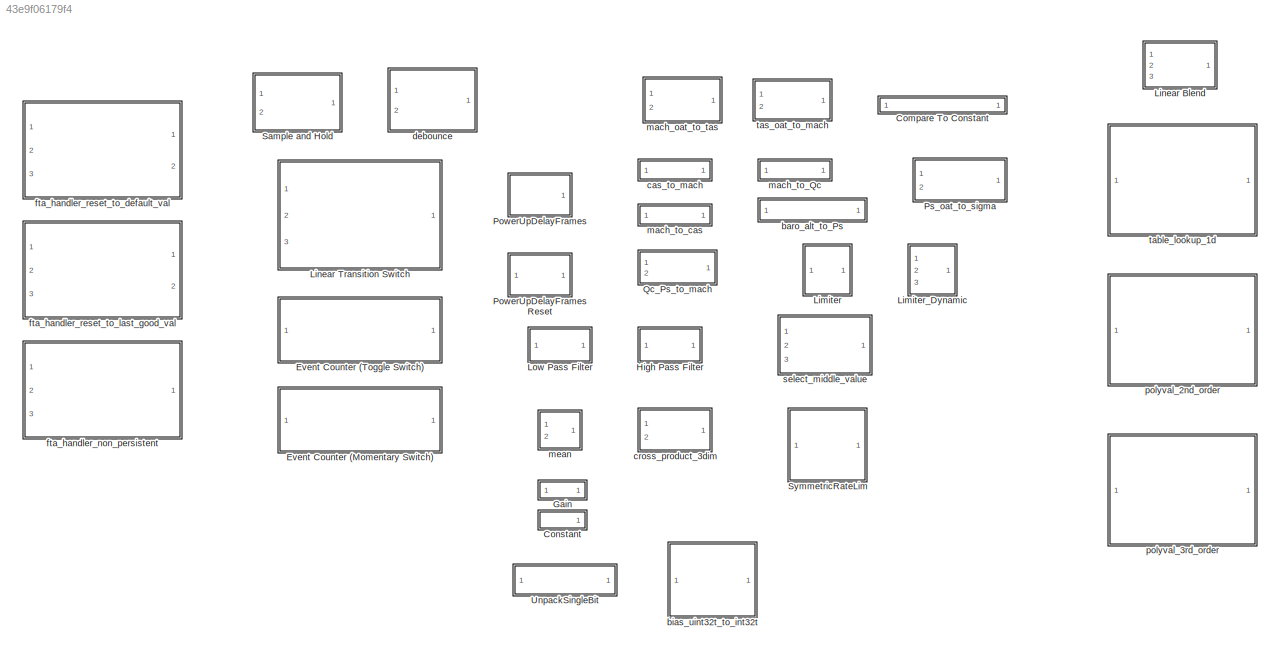
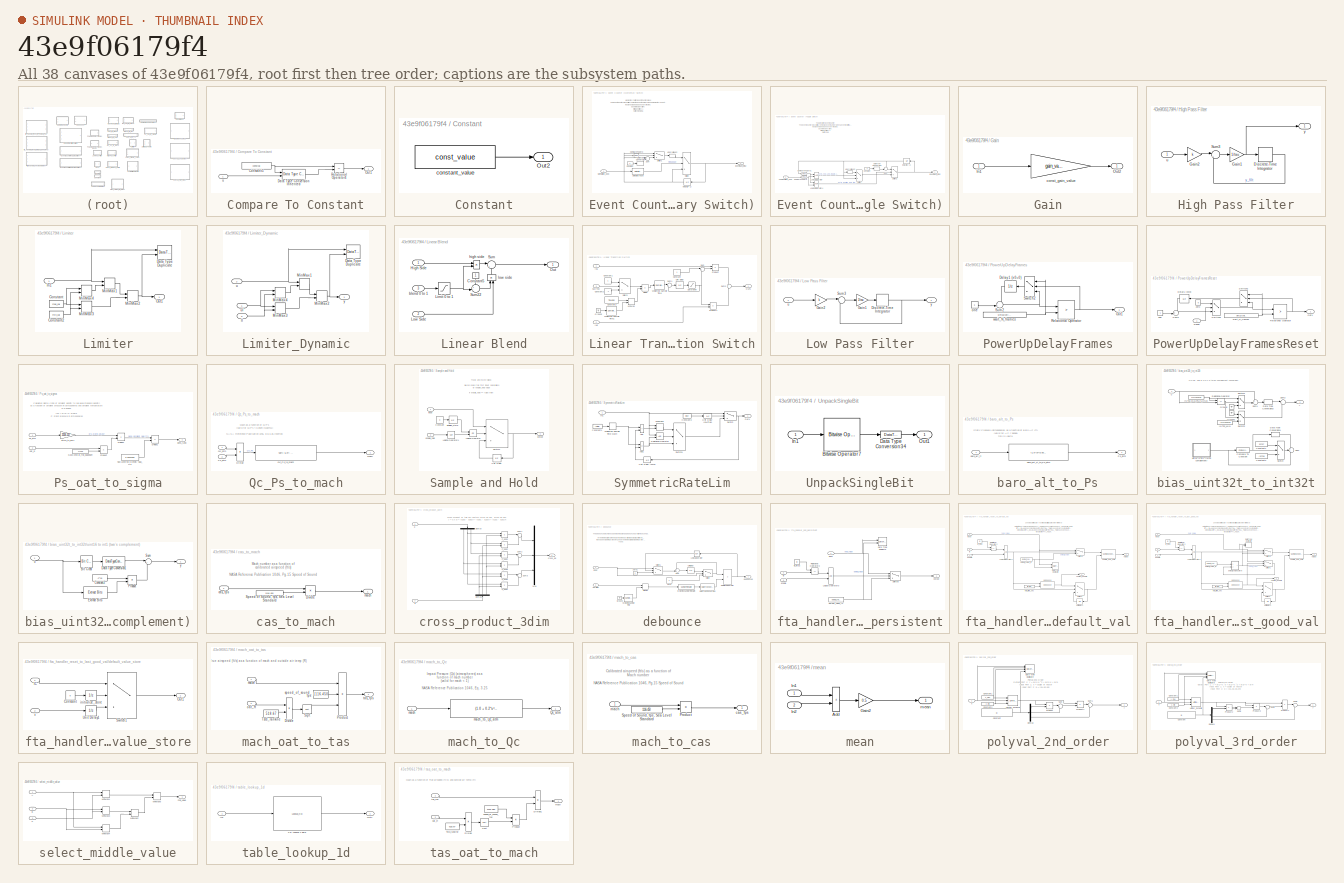
[diagram: thumbnail index - all 38 canvases of the model, root first then tree order]
MODEL slx_43e9f06179f4
KIND library
CONFIG AbsTol = auto
CONFIG EnableMultiTasking = off
CONFIG FixedStep = auto
CONFIG MaxStep = auto
CONFIG MinStep = auto
CONFIG RelTol = 1e-3
CONFIG SampleTimeConstraint = Unconstrained
CONFIG Solver = VariableStepAuto
CONFIG SolverName = VariableStepAuto
CONFIG StartTime = 0.0
CONFIG StopTime = 10.0
BLOCK [SubSystem] Compare To Constant
  Ports = [1, 1]
  RequestExecContextInheritance = off
BLOCK [Constant] Compare To Constant/Constant5
  Value = constval
BLOCK [Reference] Compare To Constant/Data Type Conversion Inherited  REF=simulink/Signal
Attributes/Data Type
Conversion
Inherited
  Ports = [2, 1]
  SourceBlock = simulink/Signal\nAttributes/Data Type\nConversion\nInherited
  SourceProductBaseCode = SL
  SourceType = Conversion Inherited
BLOCK [Outport] Compare To Constant/Out1
BLOCK [RelationalOperator] Compare To Constant/Relational Operator4
  InputSameDT = off
  Operator = ==
  OutDataTypeStr = boolean
  Ports = [2, 1]
  RndMeth = Simplest
BLOCK [Inport] Compare To Constant/u
BLOCK [SubSystem] Constant
  Ports = [0, 1]
  RequestExecContextInheritance = off
BLOCK [Outport] Constant/Out2
BLOCK [Constant] Constant/constant_value
  Value = const_value
BLOCK [SubSystem] Event Counter (Momentary Switch)
  Ports = [1, 1]
  RequestExecContextInheritance = off
BLOCK [Reference] Event Counter (Momentary Switch)/Compare To Zero  REF=simulink/Logic and Bit
Operations/Compare
To Zero
  Ports = [1, 1]
  SourceBlock = simulink/Logic and Bit\nOperations/Compare\nTo Zero
  SourceProductBaseCode = SL
  SourceType = Compare To Zero
BLOCK [Constant] Event Counter (Momentary Switch)/Constant
  OutDataTypeStr = Inherit: Inherit via back propagation
BLOCK [DataTypeConversion] Event Counter (Momentary Switch)/Data Type Conversion
  OutDataTypeStr = int32
  RndMeth = Floor
  SaturateOnIntegerOverflow = off
BLOCK [Reference] Event Counter (Momentary Switch)/Detect Increase  REF=simulink/Logic and Bit
Operations/Detect
Increase
  Ports = [1, 1]
  SourceBlock = simulink/Logic and Bit\nOperations/Detect\nIncrease
  SourceProductBaseCode = SL
  SourceType = Detect Increase
BLOCK [Outport] Event Counter (Momentary Switch)/EventNum_int32
  OutDataTypeStr = int32
  VectorParamsAs1DForOutWhenUnconnected = off
BLOCK [Inport] Event Counter (Momentary Switch)/MomSwitch_bool
  OutDataTypeStr = boolean
BLOCK [Sum] Event Counter (Momentary Switch)/Sum
  Inputs = |++
  Ports = [2, 1]
BLOCK [Switch] Event Counter (Momentary Switch)/Switch
  Criteria = u2 ~= 0
  InputSameDT = off
  SaturateOnIntegerOverflow = off
BLOCK [Switch] Event Counter (Momentary Switch)/Switch1
  Criteria = u2 ~= 0
  InputSameDT = off
  SaturateOnIntegerOverflow = off
BLOCK [UnaryMinus] Event Counter (Momentary Switch)/Unary Minus2
BLOCK [UnitDelay] Event Counter (Momentary Switch)/delay[IC=-1]
  HasFrameUpgradeWarning = on
  InitialCondition = -1
  SampleTime = -1
BLOCK [SubSystem] Event Counter (Toggle Switch)
  Ports = [1, 1]
  RequestExecContextInheritance = off
BLOCK [Reference] Event Counter (Toggle Switch)/Compare To Zero  REF=simulink/Logic and Bit
Operations/Compare
To Zero
  Ports = [1, 1]
  SourceBlock = simulink/Logic and Bit\nOperations/Compare\nTo Zero
  SourceProductBaseCode = SL
  SourceType = Compare To Zero
BLOCK [Reference] Event Counter (Toggle Switch)/Compare To Zero1  REF=simulink/Logic and Bit
Operations/Compare
To Zero
  Ports = [1, 1]
  SourceBlock = simulink/Logic and Bit\nOperations/Compare\nTo Zero
  SourceProductBaseCode = SL
  SourceType = Compare To Zero
BLOCK [Constant] Event Counter (Toggle Switch)/Constant
  OutDataTypeStr = Inherit: Inherit via back propagation
BLOCK [DataTypeConversion] Event Counter (Toggle Switch)/Data Type Conversion
  OutDataTypeStr = int32
  RndMeth = Floor
  SaturateOnIntegerOverflow = off
BLOCK [Outport] Event Counter (Toggle Switch)/EventNum_int32
  OutDataTypeStr = int32
  VectorParamsAs1DForOutWhenUnconnected = off
BLOCK [Logic] Event Counter (Toggle Switch)/Logical Operator
  AllPortsSameDT = off
  OutDataTypeStr = boolean
  Ports = [2, 1]
BLOCK [Logic] Event Counter (Toggle Switch)/Logical Operator4
  AllPortsSameDT = off
  Operator = NOR
  OutDataTypeStr = boolean
  Ports = [2, 1]
BLOCK [Sum] Event Counter (Toggle Switch)/Sum
  Inputs = --|
  Ports = [2, 1]
BLOCK [Switch] Event Counter (Toggle Switch)/Switch
  Criteria = u2 ~= 0
  InputSameDT = off
  SaturateOnIntegerOverflow = off
BLOCK [Switch] Event Counter (Toggle Switch)/Switch2
  Criteria = u2 ~= 0
  InputSameDT = off
  SaturateOnIntegerOverflow = off
BLOCK [Inport] Event Counter (Toggle Switch)/ToggleSwitch_bool
  OutDataTypeStr = boolean
BLOCK [UnaryMinus] Event Counter (Toggle Switch)/Unary Minus2
BLOCK [UnitDelay] Event Counter (Toggle Switch)/delay[IC=-1]
  HasFrameUpgradeWarning = on
  InitialCondition = -1
  NameLocation = top
  SampleTime = -1
BLOCK [SubSystem] Gain
  Ports = [1, 1]
  RequestExecContextInheritance = off
BLOCK [Inport] Gain/In1
BLOCK [Outport] Gain/Out2
BLOCK [Gain] Gain/const_gain_value
  Gain = gain_value
BLOCK [SubSystem] High Pass Filter
  Ports = [1, 1]
  RequestExecContextInheritance = off
BLOCK [DiscreteIntegrator] High Pass Filter/Discrete-Time Integrator
  ICPrevOutput = DiscIntNeverNeededParam
  ICPrevScaledInput = DiscIntNeverNeededParam
  InitialConditionSetting = Auto
  Ports = [1, 1]
  SampleTime = -1
BLOCK [Gain] High Pass Filter/Gain1
  Gain = 1/tau
BLOCK [Gain] High Pass Filter/Gain2
  Gain = k
BLOCK [Sum] High Pass Filter/Sum3
  Inputs = |+-
  Ports = [2, 1]
BLOCK [Inport] High Pass Filter/u
BLOCK [Outport] High Pass Filter/y
BLOCK [SubSystem] Limiter
  Ports = [1, 1]
  RequestExecContextInheritance = off
BLOCK [Constant] Limiter/Constant
  OutDataTypeStr = Inherit: Inherit via back propagation
  Value = max_val
BLOCK [Constant] Limiter/Constant2
  OutDataTypeStr = Inherit: Inherit via back propagation
  Value = min_val
BLOCK [DataTypeDuplicate] Limiter/Data Type Duplicate
  DisableCoverage = on
  Ports = [2]
BLOCK [Inport] Limiter/In1
BLOCK [MinMax] Limiter/MinMax1
  Inputs = 2
  Ports = [2, 1]
BLOCK [MinMax] Limiter/MinMax2
  Function = max
  Inputs = 2
  Ports = [2, 1]
BLOCK [MinMax] Limiter/MinMax3
  Inputs = 2
  Ports = [2, 1]
BLOCK [MinMax] Limiter/MinMax4
  Function = max
  Inputs = 2
  Ports = [2, 1]
BLOCK [Outport] Limiter/Out1
BLOCK [SubSystem] Limiter_Dynamic
  Ports = [3, 1]
  RequestExecContextInheritance = off
BLOCK [DataTypeDuplicate] Limiter_Dynamic/Data Type Duplicate
  DisableCoverage = on
  Ports = [2]
BLOCK [MinMax] Limiter_Dynamic/MinMax1
  Inputs = 2
  Ports = [2, 1]
BLOCK [MinMax] Limiter_Dynamic/MinMax2
  Function = max
  Inputs = 2
  Ports = [2, 1]
BLOCK [MinMax] Limiter_Dynamic/MinMax3
  Inputs = 2
  Ports = [2, 1]
BLOCK [MinMax] Limiter_Dynamic/MinMax4
  Function = max
  Inputs = 2
  Ports = [2, 1]
BLOCK [Inport] Limiter_Dynamic/ll
  Port = 3
BLOCK [Inport] Limiter_Dynamic/u
  Port = 2
BLOCK [Inport] Limiter_Dynamic/ul
BLOCK [Outport] Limiter_Dynamic/y
BLOCK [SubSystem] Linear Blend
  Ports = [3, 1]
  RequestExecContextInheritance = off
BLOCK [Constant] Linear Blend/Constant5
  NameLocation = right
  OutDataTypeStr = Inherit: Inherit via back propagation
BLOCK [Inport] Linear Blend/High Side
BLOCK [Saturate] Linear Blend/Limit 0 to 1
  LowerLimit = 0
  UpperLimit = 1
BLOCK [Inport] Linear Blend/Low Side
  Port = 2
BLOCK [Outport] Linear Blend/Out
BLOCK [Sum] Linear Blend/Sum
  Inputs = |++
  Ports = [2, 1]
BLOCK [Sum] Linear Blend/Sum22
  Inputs = +-|
  Ports = [2, 1]
BLOCK [Inport] Linear Blend/blend 0 to 1
  Port = 3
BLOCK [Product] Linear Blend/high side
  NameLocation = top
  Ports = [2, 1]
BLOCK [Product] Linear Blend/low side
  NameLocation = right
  Ports = [2, 1]
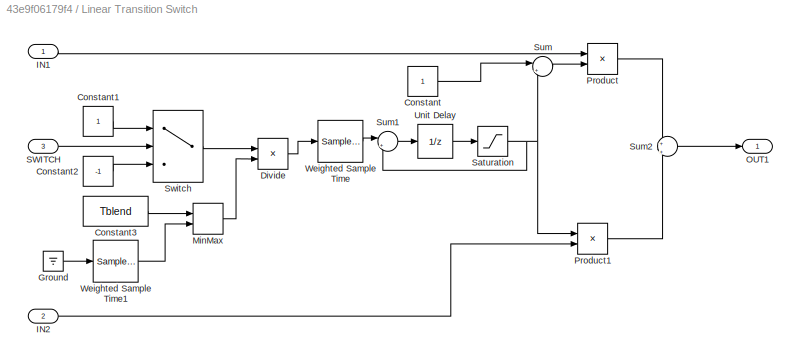
BLOCK [SubSystem] Linear Transition Switch
  Ports = [3, 1]
  RequestExecContextInheritance = off
BLOCK [Constant] Linear Transition Switch/Constant
  OutDataTypeStr = Inherit: Inherit via back propagation
BLOCK [Constant] Linear Transition Switch/Constant1
  OutDataTypeStr = Inherit: Inherit via back propagation
BLOCK [Constant] Linear Transition Switch/Constant2
  OutDataTypeStr = Inherit: Inherit via back propagation
  Value = -1
BLOCK [Constant] Linear Transition Switch/Constant3
  OutDataTypeStr = Inherit: Inherit via back propagation
  Value = Tblend
BLOCK [Product] Linear Transition Switch/Divide
  Inputs = */
  Ports = [2, 1]
BLOCK [Ground] Linear Transition Switch/Ground
BLOCK [Inport] Linear Transition Switch/IN1
BLOCK [Inport] Linear Transition Switch/IN2
  Port = 2
BLOCK [MinMax] Linear Transition Switch/MinMax
  Function = max
  Inputs = 2
  Ports = [2, 1]
BLOCK [Outport] Linear Transition Switch/OUT1
  VectorParamsAs1DForOutWhenUnconnected = off
BLOCK [Product] Linear Transition Switch/Product
  Ports = [2, 1]
BLOCK [Product] Linear Transition Switch/Product1
  Ports = [2, 1]
BLOCK [Inport] Linear Transition Switch/SWITCH
  Port = 3
BLOCK [Saturate] Linear Transition Switch/Saturation
  LowerLimit = 0
  UpperLimit = 1
BLOCK [Sum] Linear Transition Switch/Sum
  Inputs = |+-
  Ports = [2, 1]
BLOCK [Sum] Linear Transition Switch/Sum1
  Inputs = |++
  Ports = [2, 1]
BLOCK [Sum] Linear Transition Switch/Sum2
  Inputs = +|+
  Ports = [2, 1]
BLOCK [Switch] Linear Transition Switch/Switch
  Criteria = u2 > Threshold
  InputSameDT = off
  SaturateOnIntegerOverflow = off
BLOCK [UnitDelay] Linear Transition Switch/Unit Delay
  HasFrameUpgradeWarning = on
  SampleTime = -1
BLOCK [SampleTimeMath] Linear Transition Switch/Weighted Sample Time
  TsampMathOp = *
BLOCK [SampleTimeMath] Linear Transition Switch/Weighted Sample Time1
  TsampMathOp = Ts Only
BLOCK [SubSystem] Low Pass Filter
  Ports = [1, 1]
  RequestExecContextInheritance = off
BLOCK [DiscreteIntegrator] Low Pass Filter/Discrete-Time Integrator
  ICPrevOutput = DiscIntNeverNeededParam
  ICPrevScaledInput = DiscIntNeverNeededParam
  InitialConditionSetting = Auto
  Ports = [1, 1]
  SampleTime = -1
BLOCK [Gain] Low Pass Filter/Gain1
  Gain = 1/tau
BLOCK [Gain] Low Pass Filter/Gain2
  Gain = k
BLOCK [Sum] Low Pass Filter/Sum3
  Inputs = |+-
  Ports = [2, 1]
BLOCK [Inport] Low Pass Filter/u
BLOCK [Outport] Low Pass Filter/y
BLOCK [SubSystem] PowerUpDelayFrames
  AttributesFormatString = Wait 1 Frame
  Ports = [0, 1]
  RequestExecContextInheritance = off
BLOCK [UnitDelay] PowerUpDelayFrames/Delay1 (x0=0)
  HasFrameUpgradeWarning = on
  NameLocation = top
  SampleTime = -1
BLOCK [Outport] PowerUpDelayFrames/Out1
BLOCK [RelationalOperator] PowerUpDelayFrames/Relational Operator
  InputSameDT = off
  Operator = >
  OutDataTypeStr = boolean
  Ports = [2, 1]
  RndMeth = Simplest
BLOCK [Sum] PowerUpDelayFrames/Sum2
  Inputs = ++|
  Ports = [2, 1]
BLOCK [Switch] PowerUpDelayFrames/Switch2
  Criteria = u2 ~= 0
  InputSameDT = off
  NameLocation = top
  SaturateOnIntegerOverflow = off
BLOCK [Constant] PowerUpDelayFrames/one
  OutDataTypeStr = uint32
BLOCK [Constant] PowerUpDelayFrames/wait_N_frames
  OutDataTypeStr = uint32
  Value = uint32(ceil(Nframes))
BLOCK [SubSystem] PowerUpDelayFramesReset
  AttributesFormatString = Wait 1 Frame
  Ports = [1, 1]
  RequestExecContextInheritance = off
BLOCK [UnitDelay] PowerUpDelayFramesReset/Delay1 (x0=0)
  HasFrameUpgradeWarning = on
  NameLocation = top
  SampleTime = -1
BLOCK [Outport] PowerUpDelayFramesReset/Out1
BLOCK [RelationalOperator] PowerUpDelayFramesReset/Relational Operator
  InputSameDT = off
  Operator = >
  OutDataTypeStr = boolean
  Ports = [2, 1]
  RndMeth = Simplest
BLOCK [Inport] PowerUpDelayFramesReset/Reset
  OutDataTypeStr = boolean
BLOCK [Sum] PowerUpDelayFramesReset/Sum2
  Inputs = ++|
  Ports = [2, 1]
BLOCK [Switch] PowerUpDelayFramesReset/Switch2
  Criteria = u2 ~= 0
  InputSameDT = off
  NameLocation = top
  SaturateOnIntegerOverflow = off
BLOCK [Switch] PowerUpDelayFramesReset/Switch3
  Criteria = u2 ~= 0
  InputSameDT = off
  SaturateOnIntegerOverflow = off
BLOCK [Constant] PowerUpDelayFramesReset/one
  OutDataTypeStr = uint32
BLOCK [Constant] PowerUpDelayFramesReset/wait_N_frames
  OutDataTypeStr = uint32
  Value = uint32(ceil(Nframes))
BLOCK [Constant] PowerUpDelayFramesReset/zero
  OutDataTypeStr = uint32
  Value = 0
BLOCK [SubSystem] Ps_oat_to_sigma
  Ports = [2, 1]
  RequestExecContextInheritance = off
BLOCK [Product] Ps_oat_to_sigma/Divide1
  Inputs = */
  Ports = [2, 1]
BLOCK [Product] Ps_oat_to_sigma/Divide2
  Inputs = */
  Ports = [2, 1]
BLOCK [Constant] Ps_oat_to_sigma/GasConstAir_ftlb_slugdegR
  OutDataTypeStr = single
  Value = 1716.5
BLOCK [Product] Ps_oat_to_sigma/Product
  Ports = [2, 1]
BLOCK [Inport] Ps_oat_to_sigma/Ps_atm
BLOCK [Constant] Ps_oat_to_sigma/Sea Level Std Density slug_ft3
  OutDataTypeStr = single
  Value = 0.0023769
BLOCK [Gain] Ps_oat_to_sigma/atmo_to_psf1
  Gain = 2116.217
BLOCK [Outport] Ps_oat_to_sigma/dens_ratio
BLOCK [Inport] Ps_oat_to_sigma/oat_R
  Port = 2
BLOCK [SubSystem] Qc_Ps_to_mach
  Ports = [2, 1]
  RequestExecContextInheritance = off
BLOCK [Product] Qc_Ps_to_mach/Divide
  Inputs = */
  Ports = [2, 1]
BLOCK [Inport] Qc_Ps_to_mach/Ps_atm
  Port = 2
BLOCK [Fcn] Qc_Ps_to_mach/Qc_Ps_to_mach
  Expr = sqrt(  5.0*( (u+1.0)^(2/7) - 1.0)  )
BLOCK [Inport] Qc_Ps_to_mach/Qc_atm
BLOCK [Outport] Qc_Ps_to_mach/mach
BLOCK [SubSystem] Sample and Hold
  Ports = [2, 1]
  RequestExecContextInheritance = off
BLOCK [Constant] Sample and Hold/Constant
  OutDataTypeStr = boolean
  Value = 0
BLOCK [Logic] Sample and Hold/Logical Operator
  AllPortsSameDT = off
  Operator = OR
  OutDataTypeStr = boolean
  Ports = [2, 1]
BLOCK [Logic] Sample and Hold/Logical Operator1
  AllPortsSameDT = off
  Operator = NOT
  OutDataTypeStr = boolean
  Ports = [1, 1]
BLOCK [Switch] Sample and Hold/Switch1
  Criteria = u2 ~= 0
  InputSameDT = off
  SaturateOnIntegerOverflow = off
BLOCK [UnitDelay] Sample and Hold/Unit Delay
  HasFrameUpgradeWarning = on
  NameLocation = top
  SampleTime = -1
BLOCK [Inport] Sample and Hold/enable_hold
  Port = 2
BLOCK [UnitDelay] Sample and Hold/initialize_store
  HasFrameUpgradeWarning = on
  InitialCondition = 1
  SampleTime = -1
BLOCK [Inport] Sample and Hold/input
BLOCK [Outport] Sample and Hold/output
  VectorParamsAs1DForOutWhenUnconnected = off
BLOCK [SubSystem] SymmetricRateLim
  Ports = [1, 1]
  RequestExecContextInheritance = off
BLOCK [Sum] SymmetricRateLim/Add
  IconShape = rectangular
  Ports = [2, 1]
BLOCK [Sum] SymmetricRateLim/Add1
  IconShape = rectangular
  Inputs = -+
  Ports = [2, 1]
BLOCK [Constant] SymmetricRateLim/Constant1
  OutDataTypeStr = Inherit: Inherit via back propagation
  Value = ratelim
BLOCK [Constant] SymmetricRateLim/Constant3
  Value = false
BLOCK [Inport] SymmetricRateLim/In1
BLOCK [MinMax] SymmetricRateLim/MinMax5
  Inputs = 2
  Ports = [2, 1]
BLOCK [Outport] SymmetricRateLim/Out1
BLOCK [RelationalOperator] SymmetricRateLim/Relational Operator
  InputSameDT = off
  OutDataTypeStr = boolean
  Ports = [2, 1]
  RndMeth = Simplest
BLOCK [Switch] SymmetricRateLim/Switch
  Criteria = u2 ~= 0
  InputSameDT = off
  SaturateOnIntegerOverflow = off
BLOCK [Switch] SymmetricRateLim/Switch1
  Criteria = u2 ~= 0
  InputSameDT = off
  SaturateOnIntegerOverflow = off
BLOCK [UnitDelay] SymmetricRateLim/Unit Delay (x0=0)
  HasFrameUpgradeWarning = on
  InitialCondition = true
  SampleTime = -1
BLOCK [UnitDelay] SymmetricRateLim/Unit Delay (x0=True)
  HasFrameUpgradeWarning = on
  InitialCondition = true
  SampleTime = -1
BLOCK [SampleTimeMath] SymmetricRateLim/Weighted Sample Time Math
  TsampMathImp = Offline Scaling Adjustment
  TsampMathOp = *
BLOCK [SubSystem] UnpackSingleBit
  Ports = [1, 1]
  RequestExecContextInheritance = off
BLOCK [Reference] UnpackSingleBit/Bitwise Operator7  REF=simulink/Logic and Bit
Operations/Bitwise
Operator
  Ports = [1, 1]
  SourceBlock = simulink/Logic and Bit\nOperations/Bitwise\nOperator
  SourceProductBaseCode = SL
  SourceType = Bitwise Operator
BLOCK [DataTypeConversion] UnpackSingleBit/Data Type Conversion34
  OutDataTypeStr = boolean
  RndMeth = Floor
  SaturateOnIntegerOverflow = off
BLOCK [Inport] UnpackSingleBit/In1
BLOCK [Outport] UnpackSingleBit/Out1
  OutDataTypeStr = boolean
BLOCK [SubSystem] baro_alt_to_Ps
  Ports = [1, 1]
  RequestExecContextInheritance = off
BLOCK [Outport] baro_alt_to_Ps/Ps_atm
BLOCK [Inport] baro_alt_to_Ps/baro_alt_ft
BLOCK [Fcn] baro_alt_to_Ps/baro_alt_ft_to_Ps_atm
  Expr = (1.0-(u*(0.00356616/518.67)))^5.2561
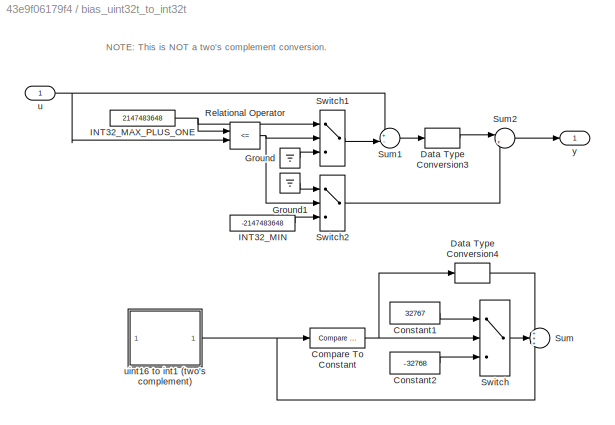
BLOCK [SubSystem] bias_uint32t_to_int32t
  Ports = [1, 1]
  RequestExecContextInheritance = off
BLOCK [Reference] bias_uint32t_to_int32t/Compare To Constant  REF=simulink/Logic and Bit
Operations/Compare
To Constant
  Commented = on
  Ports = [1, 1]
  SourceBlock = simulink/Logic and Bit\nOperations/Compare\nTo Constant
  SourceProductBaseCode = SL
  SourceType = Compare To Constant
BLOCK [Constant] bias_uint32t_to_int32t/Constant1
  Commented = on
  OutDataTypeStr = int16
  SampleTime = 1e-6
  Value = 32767
  VectorParams1D = off
BLOCK [Constant] bias_uint32t_to_int32t/Constant2
  Commented = on
  OutDataTypeStr = int16
  SampleTime = 1e-6
  Value = -32768
BLOCK [DataTypeConversion] bias_uint32t_to_int32t/Data Type Conversion3
  OutDataTypeStr = int32
  RndMeth = Floor
BLOCK [DataTypeConversion] bias_uint32t_to_int32t/Data Type Conversion4
  Commented = on
  OutDataTypeStr = int16
  RndMeth = Floor
BLOCK [Ground] bias_uint32t_to_int32t/Ground
BLOCK [Ground] bias_uint32t_to_int32t/Ground1
BLOCK [Constant] bias_uint32t_to_int32t/INT32_MAX_PLUS_ONE
  OutDataTypeStr = uint32
  Value = 2147483648
BLOCK [Constant] bias_uint32t_to_int32t/INT32_MIN
  OutDataTypeStr = int32
  Value = -2147483648
BLOCK [RelationalOperator] bias_uint32t_to_int32t/Relational Operator
  InputSameDT = off
  Operator = <=
  OutDataTypeStr = boolean
  Ports = [2, 1]
  RndMeth = Simplest
BLOCK [Sum] bias_uint32t_to_int32t/Sum
  Commented = on
  Inputs = +++
  Ports = [3, 1]
BLOCK [Sum] bias_uint32t_to_int32t/Sum1
  Inputs = +-|
  Ports = [2, 1]
BLOCK [Sum] bias_uint32t_to_int32t/Sum2
  Inputs = |++
  Ports = [2, 1]
BLOCK [Switch] bias_uint32t_to_int32t/Switch
  Commented = on
  Criteria = u2 ~= 0
  InputSameDT = off
  SaturateOnIntegerOverflow = off
BLOCK [Switch] bias_uint32t_to_int32t/Switch1
  Criteria = u2 ~= 0
  InputSameDT = off
  SaturateOnIntegerOverflow = off
BLOCK [Switch] bias_uint32t_to_int32t/Switch2
  Criteria = u2 ~= 0
  InputSameDT = off
  SaturateOnIntegerOverflow = off
BLOCK [Inport] bias_uint32t_to_int32t/u
  OutDataTypeStr = uint32
BLOCK [SubSystem] bias_uint32t_to_int32t/uint16 to int1 (two's complement)
  Commented = on
  Ports = [1, 1]
  RequestExecContextInheritance = off
BLOCK [Reference] bias_uint32t_to_int32t/uint16 to int1 (two's complement)/Bit Clear  REF=simulink/Logic and Bit
Operations/Bit Clear
  Ports = [1, 1]
  SourceBlock = simulink/Logic and Bit\nOperations/Bit Clear
  SourceProductBaseCode = SL
  SourceType = Bit Clear
BLOCK [Constant] bias_uint32t_to_int32t/uint16 to int1 (two's complement)/Constant2
  OutDataTypeStr = int16
  SampleTime = 1e-6
  Value = -2^15
BLOCK [DataTypeConversion] bias_uint32t_to_int32t/uint16 to int1 (two's complement)/Data Type Conversion1
  OutDataTypeStr = int16
  RndMeth = Floor
  SaturateOnIntegerOverflow = off
BLOCK [Reference] bias_uint32t_to_int32t/uint16 to int1 (two's complement)/Extract Bits  REF=simulink/Logic and Bit
Operations/Extract Bits
  Ports = [1, 1]
  SourceBlock = simulink/Logic and Bit\nOperations/Extract Bits
  SourceProductBaseCode = SL
  SourceType = Extract Bits
BLOCK [Product] bias_uint32t_to_int32t/uint16 to int1 (two's complement)/Product
  Ports = [2, 1]
  RndMeth = Zero
BLOCK [Sum] bias_uint32t_to_int32t/uint16 to int1 (two's complement)/Sum
  Inputs = |++
  Ports = [2, 1]
BLOCK [Inport] bias_uint32t_to_int32t/uint16 to int1 (two's complement)/u
  NameLocation = left
BLOCK [Outport] bias_uint32t_to_int32t/uint16 to int1 (two's complement)/y
BLOCK [Outport] bias_uint32t_to_int32t/y
  OutDataTypeStr = int32
BLOCK [SubSystem] cas_to_mach
  Ports = [1, 1]
  RequestExecContextInheritance = off
BLOCK [Product] cas_to_mach/Divide
  Inputs = */
  Ports = [2, 1]
BLOCK [Constant] cas_to_mach/Speed of Sound, fps, Sea Level Standard
  OutDataTypeStr = Inherit: Inherit via back propagation
  Value = 1116.450
BLOCK [Inport] cas_to_mach/cas_fps
BLOCK [Outport] cas_to_mach/mach
BLOCK [SubSystem] cross_product_3dim
  Ports = [2, 1]
  RequestExecContextInheritance = off
BLOCK [Demux] cross_product_3dim/Demux
  NameLocation = left
  Outputs = 3
  Ports = [1, 3]
BLOCK [Demux] cross_product_3dim/Demux1
  NameLocation = right
  Outputs = 3
  Ports = [1, 3]
BLOCK [Mux] cross_product_3dim/Mux
  DisplayOption = bar
  Inputs = 3
  Ports = [3, 1]
BLOCK [Product] cross_product_3dim/P_a1b2
  Ports = [2, 1]
BLOCK [Product] cross_product_3dim/P_a1b3
  Ports = [2, 1]
BLOCK [Product] cross_product_3dim/P_a2b1
  Ports = [2, 1]
BLOCK [Product] cross_product_3dim/P_a2b3
  Ports = [2, 1]
BLOCK [Product] cross_product_3dim/P_a3b1
  Ports = [2, 1]
BLOCK [Product] cross_product_3dim/P_a3b2
  Ports = [2, 1]
BLOCK [Sum] cross_product_3dim/Sum1
  Inputs = |+-
  Ports = [2, 1]
BLOCK [Sum] cross_product_3dim/Sum2
  Inputs = |+-
  Ports = [2, 1]
BLOCK [Sum] cross_product_3dim/Sum3
  Inputs = |+-
  Ports = [2, 1]
BLOCK [Inport] cross_product_3dim/a
BLOCK [Inport] cross_product_3dim/b
  Port = 2
BLOCK [Outport] cross_product_3dim/cross_ab
BLOCK [SubSystem] debounce
  Ports = [2, 1]
  RequestExecContextInheritance = off
BLOCK [DataTypeConversion] debounce/Data Type Conversion
  OutDataTypeStr = uint32
  RndMeth = Floor
  SaturateOnIntegerOverflow = off
BLOCK [Ground] debounce/Ground
BLOCK [Logic] debounce/Logical Operator
  AllPortsSameDT = off
  NameLocation = top
  Operator = NOT
  OutDataTypeStr = boolean
  Ports = [1, 1]
BLOCK [MinMax] debounce/MinMax
  Function = max
  Inputs = 2
  Ports = [2, 1]
BLOCK [RelationalOperator] debounce/Relational Operator
  InputSameDT = off
  Operator = >
  OutDataTypeStr = boolean
  Ports = [2, 1]
  RndMeth = Simplest
BLOCK [Sum] debounce/Sum
  Inputs = ++|
  Ports = [2, 1]
BLOCK [Switch] debounce/Switch
  Criteria = u2 > Threshold
  InputSameDT = off
  SaturateOnIntegerOverflow = off
BLOCK [Switch] debounce/Switch1
  Criteria = u2 ~= 0
  InputSameDT = off
  SaturateOnIntegerOverflow = off
BLOCK [UnitDelay] debounce/Unit Delay
  HasFrameUpgradeWarning = on
  SampleTime = -1
BLOCK [SampleTimeMath] debounce/Weighted Sample Time
  TsampMathOp = Ts Only
BLOCK [SampleTimeMath] debounce/Weighted Sample Time Math
  TsampMathOp = /
BLOCK [Outport] debounce/debounced
  VectorParamsAs1DForOutWhenUnconnected = off
BLOCK [Inport] debounce/duration
  Port = 2
BLOCK [Inport] debounce/input
  OutDataTypeStr = boolean
BLOCK [Constant] debounce/zero
  OutDataTypeStr = uint32
  Value = 0
BLOCK [Constant] debounce/zero1
  OutDataTypeStr = uint32
  Value = 0
BLOCK [SubSystem] fta_handler_non_persistent
  Ports = [3, 1]
  RequestExecContextInheritance = off
BLOCK [DataTypeDuplicate] fta_handler_non_persistent/Data Type Duplicate
  Ports = [2]
BLOCK [Logic] fta_handler_non_persistent/Logical Operator3
  AllPortsSameDT = off
  OutDataTypeStr = boolean
  Ports = [2, 1]
BLOCK [RelationalOperator] fta_handler_non_persistent/Relational Operator2
  InputSameDT = off
  Operator = ==
  OutDataTypeStr = boolean
  Ports = [2, 1]
  RndMeth = Simplest
BLOCK [Switch] fta_handler_non_persistent/Switch3
  Criteria = u2 ~= 0
  InputSameDT = off
  SaturateOnIntegerOverflow = off
BLOCK [Constant] fta_handler_non_persistent/default_value_IC
  OutDataTypeStr = Inherit: Inherit via back propagation
  Value = default_value
BLOCK [Inport] fta_handler_non_persistent/enable
  Port = 3
BLOCK [Inport] fta_handler_non_persistent/id
  Port = 2
BLOCK [Constant] fta_handler_non_persistent/id_int32
  OutDataTypeStr = int32
  Value = id
BLOCK [Inport] fta_handler_non_persistent/input
BLOCK [Outport] fta_handler_non_persistent/output
BLOCK [SubSystem] fta_handler_reset_to_default_val
  Ports = [3, 2]
  RequestExecContextInheritance = off
BLOCK [DataTypeDuplicate] fta_handler_reset_to_default_val/Data Type Duplicate
  Ports = [2]
BLOCK [Logic] fta_handler_reset_to_default_val/Logical Operator3
  AllPortsSameDT = off
  OutDataTypeStr = boolean
  Ports = [2, 1]
BLOCK [RelationalOperator] fta_handler_reset_to_default_val/Relational Operator2
  InputSameDT = off
  Operator = ==
  OutDataTypeStr = boolean
  Ports = [2, 1]
  RndMeth = Simplest
BLOCK [Switch] fta_handler_reset_to_default_val/Switch3
  Criteria = u2 ~= 0
  InputSameDT = off
  SaturateOnIntegerOverflow = off
BLOCK [Switch] fta_handler_reset_to_default_val/Switch4
  Criteria = u2 ~= 0
  InputSameDT = off
  SaturateOnIntegerOverflow = off
BLOCK [UnitDelay] fta_handler_reset_to_default_val/Unit Delay1
  HasFrameUpgradeWarning = on
  NameLocation = top
  SampleTime = -1
BLOCK [Outport] fta_handler_reset_to_default_val/confirm_enable
  Port = 2
BLOCK [Reference] fta_handler_reset_to_default_val/debounce  REF=$bdroot/debounce
  Ports = [2, 1]
  SourceBlock = $bdroot/debounce
  SourceType = SubSystem
BLOCK [Constant] fta_handler_reset_to_default_val/default_value_IC
  OutDataTypeStr = Inherit: Inherit via back propagation
  Value = default_value
BLOCK [Inport] fta_handler_reset_to_default_val/enable
  Port = 3
BLOCK [Inport] fta_handler_reset_to_default_val/id
  Port = 2
BLOCK [Constant] fta_handler_reset_to_default_val/id_int32
  OutDataTypeStr = int32
  Value = id
BLOCK [Inport] fta_handler_reset_to_default_val/input
BLOCK [Outport] fta_handler_reset_to_default_val/output
BLOCK [Reference] fta_handler_reset_to_default_val/sample_and_hold  REF=$bdroot/Sample and Hold
  Ports = [2, 1]
  SourceBlock = $bdroot/Sample and Hold
  SourceType = SubSystem
BLOCK [Constant] fta_handler_reset_to_default_val/trial_time_sec
  OutDataTypeStr = Inherit: Inherit via back propagation
  Value = trial_time
BLOCK [SubSystem] fta_handler_reset_to_last_good_val
  Ports = [3, 2]
  RequestExecContextInheritance = off
BLOCK [DataTypeDuplicate] fta_handler_reset_to_last_good_val/Data Type Duplicate
  Ports = [2]
BLOCK [Logic] fta_handler_reset_to_last_good_val/Logical Operator3
  AllPortsSameDT = off
  OutDataTypeStr = boolean
  Ports = [2, 1]
BLOCK [RelationalOperator] fta_handler_reset_to_last_good_val/Relational Operator2
  InputSameDT = off
  Operator = ==
  OutDataTypeStr = boolean
  Ports = [2, 1]
  RndMeth = Simplest
BLOCK [Switch] fta_handler_reset_to_last_good_val/Switch1
  Criteria = u2 ~= 0
  InputSameDT = off
  SaturateOnIntegerOverflow = off
BLOCK [Switch] fta_handler_reset_to_last_good_val/Switch3
  Criteria = u2 ~= 0
  InputSameDT = off
  SaturateOnIntegerOverflow = off
BLOCK [Switch] fta_handler_reset_to_last_good_val/Switch4
  Criteria = u2 ~= 0
  InputSameDT = off
  SaturateOnIntegerOverflow = off
BLOCK [UnitDelay] fta_handler_reset_to_last_good_val/Unit Delay1
  HasFrameUpgradeWarning = on
  NameLocation = top
  SampleTime = -1
BLOCK [Outport] fta_handler_reset_to_last_good_val/confirm_enable
  Port = 2
BLOCK [Reference] fta_handler_reset_to_last_good_val/debounce  REF=$bdroot/debounce
  Ports = [2, 1]
  SourceBlock = $bdroot/debounce
  SourceType = SubSystem
BLOCK [Constant] fta_handler_reset_to_last_good_val/default_value_IC
  OutDataTypeStr = Inherit: Inherit via back propagation
  Value = default_value
BLOCK [SubSystem] fta_handler_reset_to_last_good_val/default_value_store
  Ports = [2, 1]
  RequestExecContextInheritance = off
BLOCK [Constant] fta_handler_reset_to_last_good_val/default_value_store/Constant
  OutDataTypeStr = Inherit: Inherit via back propagation
  Value = 0
BLOCK [Inport] fta_handler_reset_to_last_good_val/default_value_store/IC
BLOCK [Outport] fta_handler_reset_to_last_good_val/default_value_store/Out1
BLOCK [Switch] fta_handler_reset_to_last_good_val/default_value_store/Switch1
  Criteria = u2 ~= 0
  InputSameDT = off
  SaturateOnIntegerOverflow = off
BLOCK [UnitDelay] fta_handler_reset_to_last_good_val/default_value_store/Unit Delay1
  HasFrameUpgradeWarning = on
  SampleTime = -1
BLOCK [UnitDelay] fta_handler_reset_to_last_good_val/default_value_store/initialize_store
  HasFrameUpgradeWarning = on
  InitialCondition = 1
  SampleTime = -1
BLOCK [Inport] fta_handler_reset_to_last_good_val/default_value_store/x
  Port = 2
BLOCK [Inport] fta_handler_reset_to_last_good_val/enable
  Port = 3
BLOCK [Inport] fta_handler_reset_to_last_good_val/id
  Port = 2
BLOCK [Constant] fta_handler_reset_to_last_good_val/id_int32
  OutDataTypeStr = int32
  Value = id
BLOCK [Inport] fta_handler_reset_to_last_good_val/input
BLOCK [Outport] fta_handler_reset_to_last_good_val/output
BLOCK [Reference] fta_handler_reset_to_last_good_val/sample_and_hold  REF=$bdroot/Sample and Hold
  Ports = [2, 1]
  SourceBlock = $bdroot/Sample and Hold
  SourceType = SubSystem
BLOCK [Constant] fta_handler_reset_to_last_good_val/trial_time_sec
  OutDataTypeStr = Inherit: Inherit via back propagation
  Value = trial_time
BLOCK [SubSystem] mach_oat_to_tas
  Ports = [2, 1]
  RequestExecContextInheritance = off
BLOCK [Product] mach_oat_to_tas/Divide
  Inputs = */
  Ports = [2, 1]
BLOCK [Product] mach_oat_to_tas/Product
  Inputs = 3
  Ports = [3, 1]
BLOCK [Sqrt] mach_oat_to_tas/Sqrt
BLOCK [Constant] mach_oat_to_tas/Tstd_rankine
  OutDataTypeStr = Inherit: Inherit via back propagation
  Value = 518.67
BLOCK [Inport] mach_oat_to_tas/mach
BLOCK [Inport] mach_oat_to_tas/oat_R
  Port = 2
BLOCK [Constant] mach_oat_to_tas/speed_of_sound_fps
  OutDataTypeStr = Inherit: Inherit via back propagation
  Value = 1116.450
BLOCK [Outport] mach_oat_to_tas/tas_fps
BLOCK [SubSystem] mach_to_Qc
  Ports = [1, 1]
  RequestExecContextInheritance = off
BLOCK [Outport] mach_to_Qc/Qc_atm
BLOCK [Inport] mach_to_Qc/mach
BLOCK [Fcn] mach_to_Qc/mach_to_Qc_atm
  Expr = (1.0 + 0.2*u^2 )^(7/2) - 1.0
BLOCK [SubSystem] mach_to_cas
  Ports = [1, 1]
  RequestExecContextInheritance = off
BLOCK [Product] mach_to_cas/Product
  Ports = [2, 1]
BLOCK [Constant] mach_to_cas/Speed of Sound, fps, Sea Level Standard
  OutDataTypeStr = Inherit: Inherit via back propagation
  Value = 1116.450
BLOCK [Outport] mach_to_cas/cas_fps
BLOCK [Inport] mach_to_cas/mach
BLOCK [SubSystem] mean
  Ports = [2, 1]
  RequestExecContextInheritance = off
BLOCK [Sum] mean/Add
  IconShape = rectangular
  Ports = [2, 1]
BLOCK [Gain] mean/Gain2
  Gain = 0.5
BLOCK [Inport] mean/In1
BLOCK [Inport] mean/In2
  Port = 2
BLOCK [Outport] mean/mean
BLOCK [SubSystem] polyval_2nd_order
  AttributesFormatString = p=[1,2,-0.5] (clip)
  Ports = [1, 1]
  RequestExecContextInheritance = off
BLOCK [Constant] polyval_2nd_order/Constant
  OutDataTypeStr = Inherit: Inherit via back propagation
  Value = p
BLOCK [Constant] polyval_2nd_order/Constant1
  OutDataTypeStr = Inherit: Inherit via back propagation
  Value = x_max
BLOCK [Constant] polyval_2nd_order/Constant2
  OutDataTypeStr = Inherit: Inherit via back propagation
  Value = x_min
BLOCK [DataTypeDuplicate] polyval_2nd_order/Data Type Duplicate
  DisableCoverage = on
  NumInputPorts = 4
  Ports = [4]
BLOCK [Demux] polyval_2nd_order/Demux
  Outputs = 3
  Ports = [1, 3]
BLOCK [Reference] polyval_2nd_order/Limiter_Dynamic  REF=$bdroot/Limiter_Dynamic
  Ports = [3, 1]
  SourceBlock = $bdroot/Limiter_Dynamic
  SourceType = Saturation Limit (Dynamic)
BLOCK [Product] polyval_2nd_order/Product
  Ports = [2, 1]
BLOCK [Product] polyval_2nd_order/Product1
  Ports = [2, 1]
BLOCK [Sum] polyval_2nd_order/Sum
  Inputs = |++
  Ports = [2, 1]
BLOCK [Sum] polyval_2nd_order/Sum1
  Inputs = |++
  Ports = [2, 1]
BLOCK [Inport] polyval_2nd_order/x
BLOCK [Outport] polyval_2nd_order/y
BLOCK [SubSystem] polyval_3rd_order
  AttributesFormatString = p=[2,1,1,-0.5] (clip)
  Ports = [1, 1]
  RequestExecContextInheritance = off
BLOCK [Constant] polyval_3rd_order/Constant
  OutDataTypeStr = Inherit: Inherit via back propagation
  Value = p
BLOCK [Constant] polyval_3rd_order/Constant1
  OutDataTypeStr = Inherit: Inherit via back propagation
  Value = x_max
BLOCK [Constant] polyval_3rd_order/Constant2
  OutDataTypeStr = Inherit: Inherit via back propagation
  Value = x_min
BLOCK [DataTypeDuplicate] polyval_3rd_order/Data Type Duplicate
  DisableCoverage = on
  NumInputPorts = 4
  Ports = [4]
BLOCK [Demux] polyval_3rd_order/Demux1
  Ports = [1, 4]
BLOCK [Reference] polyval_3rd_order/Limiter_Dynamic  REF=$bdroot/Limiter_Dynamic
  Ports = [3, 1]
  SourceBlock = $bdroot/Limiter_Dynamic
  SourceType = Saturation Limit (Dynamic)
BLOCK [Product] polyval_3rd_order/Product2
  Ports = [2, 1]
BLOCK [Product] polyval_3rd_order/Product3
  Ports = [2, 1]
BLOCK [Product] polyval_3rd_order/Product4
  Ports = [2, 1]
BLOCK [Sum] polyval_3rd_order/Sum2
  Inputs = |++
  Ports = [2, 1]
BLOCK [Sum] polyval_3rd_order/Sum3
  Inputs = |++
  Ports = [2, 1]
BLOCK [Sum] polyval_3rd_order/Sum4
  Inputs = |++
  Ports = [2, 1]
BLOCK [Inport] polyval_3rd_order/x
BLOCK [Outport] polyval_3rd_order/y
BLOCK [SubSystem] select_middle_value
  Ports = [3, 1]
  RequestExecContextInheritance = off
BLOCK [Inport] select_middle_value/A
BLOCK [Inport] select_middle_value/B
  Port = 2
BLOCK [Inport] select_middle_value/C
  Port = 3
BLOCK [MinMax] select_middle_value/MinMax1
  Inputs = 2
  Ports = [2, 1]
BLOCK [MinMax] select_middle_value/MinMax2
  Function = max
  Inputs = 2
  Ports = [2, 1]
BLOCK [MinMax] select_middle_value/MinMax3
  Inputs = 2
  Ports = [2, 1]
BLOCK [MinMax] select_middle_value/MinMax4
  Inputs = 2
  Ports = [2, 1]
BLOCK [MinMax] select_middle_value/MinMax5
  Function = max
  Inputs = 2
  Ports = [2, 1]
BLOCK [Outport] select_middle_value/mid_value
BLOCK [SubSystem] table_lookup_1d
  AttributesFormatString = (clip)
  Ports = [1, 1]
  RequestExecContextInheritance = off
BLOCK [Lookup_n-D] table_lookup_1d/1-D Lookup Table
  BeginIndexSearchUsingPreviousIndexResult = on
  BreakpointsForDimension1 = xdat
  ExtrapMethod = Clip
  InternalRulePriority = Speed
  NumberOfTableDimensions = 1
  Ports = [1, 1]
  RndMeth = Simplest
  Table = ydat
  UseLastTableValue = on
BLOCK [Inport] table_lookup_1d/In1
BLOCK [Outport] table_lookup_1d/Out1
BLOCK [SubSystem] tas_oat_to_mach
  Ports = [2, 1]
  RequestExecContextInheritance = off
BLOCK [Product] tas_oat_to_mach/Divide
  Inputs = */
  Ports = [2, 1]
BLOCK [Product] tas_oat_to_mach/Divide1
  Inputs = */
  Ports = [2, 1]
BLOCK [Product] tas_oat_to_mach/Product
  Ports = [2, 1]
BLOCK [Sqrt] tas_oat_to_mach/Sqrt
BLOCK [Constant] tas_oat_to_mach/Tstd_rankine
  OutDataTypeStr = Inherit: Inherit via back propagation
  Value = 518.67
BLOCK [Outport] tas_oat_to_mach/mach
BLOCK [Inport] tas_oat_to_mach/oat_R
  Port = 2
BLOCK [Constant] tas_oat_to_mach/speed_of_sound_fps
  OutDataTypeStr = Inherit: Inherit via back propagation
  Value = 1116.450
BLOCK [Inport] tas_oat_to_mach/tas_fps
ANNOTATION Event Counter (Momentary Switch): Momentary Switch Event Counter Block The Event Counter block will increment an event number given a momentary event switch input (triggered on the rising edge). Expected input is boolean [0:SwitchNotPressed, 1:SwitchPressed]. Input should be debounce protected. Example Operation: Initial Condition: -1 Switch mom. ON: 1 Switch mom. ON: -2 Switch mom. ON: 2 Switch mom. ON: -3
ANNOTATION Event Counter (Toggle Switch): Toggle Switch Event Counter The Event Counter block will increment an event number given a event on/off toggle switch input. Input is boolean [0:SwitchNotPressed, 1:SwitchPressed]. Input should be debounce protected. Example Operation: Initial Condition: -1 Switch ON: 1 Switch OFF: -2 Switch ON: 2 Switch OFF: -3
ANNOTATION Ps_oat_to_sigma: Calculates sigma (ratio of ambient density to sea level standard density) as a function of ambient pressure in atmospheres and ambient temperature in Rankine. rho = P/(R*T) where P: static pressure in atmospheres T: temperature in Rankine R: gas constant for air, ft-lb/(slug-degR) Ref: NASA Reference Publication 1046 (1980)
ANNOTATION Qc_Ps_to_mach: Mach as a function of Q/Ps (valid for Q/Ps < 0.8929 (Mach<1)) NASA Reference Publication 1046, Eq.3.25 Inverted
ANNOTATION Sample and Hold: Track and Store Block always pass the first input regardless of enable_hold value if enable_hold == false then output = input if enable_hold == true then save current output output=unit_delay
ANNOTATION baro_alt_to_Ps: Static Pressure (atmospheres) as a function of Baro Alt (ft) (valid for Alt < 36089) this is /delta
ANNOTATION bias_uint32t_to_int32t: NOTE: This is NOT a two's complement conversion.
ANNOTATION cas_to_mach: Mach number as a function of calibrated airspeed (ft/s) NASA Reference Publication 1046, Pg.15 Speed of Sound
ANNOTATION cross_product_3dim: Cross product of two 3x1 vectors a=[a1 a2 a3], b=[b1 b2 b3]: y = a x b = (a2b3 - a3b2)i + (a3b1 - a1b3)j + (a1b2 - a2b1)k
ANNOTATION debounce: The debounce block takes a boolean input and a debounce duration in seconds. When the input is true for longer than the duration, the output is set to true. When this happens, the integrator is frozen. When the input is false, the integrator is reset.
ANNOTATION fta_handler_reset_to_default_val: Send input with auto-reset to default if disable before timeout Output the FTA NOUN value when FTA_VERB and verb match and FTA_ENABLE is TRUE. If FTA_ENABLE becomes false before the TRIAL_TIME has expired, reset output to the default value. If FTA_ENABLE becomes false after the TRIAL_TIME has expired, continue to output the FTA_NOUN. This subsystem can always be reset to the default value by sendi...<+85ch>
ANNOTATION fta_handler_reset_to_last_good_val: Send input with auto-reset to default if disable before timeout Output the FTA NOUN value when FTA_VERB and verb match and FTA_ENABLE is TRUE. If FTA_ENABLE becomes false before the TRIAL_TIME has expired, reset output to the default value. If FTA_ENABLE becomes false after the TRIAL_TIME has expired, continue to output the FTA_NOUN. This subsystem can always be reset to the default value by sendi...<+85ch>
ANNOTATION mach_oat_to_tas: True airspeed (ft/s) as a function of mach and outside air temp (R)
ANNOTATION mach_to_Qc: Impact Pressure (Qc) (atmospheres) as a function of mach number (valid for mach < 1) NASA Reference Publication 1046, Eq. 3.25
ANNOTATION mach_to_cas: Calibrated airspeed (ft/s) as a function of Mach number NASA Reference Publication 1046, Pg.15 Speed of Sound
ANNOTATION polyval_2nd_order: Polyval 2nd Order Output Port 1: y = p(1)*x.^2 + p(2)*x + p(3) Input Port 1: x = scalar or vector Input Port 2: p = [p1,p2,p3]
ANNOTATION polyval_3rd_order: Polyval 3rd Order Output Port 1: y = p(1)*x.^3 + p(2)*x.^2 + p(3)*x + p(4) Input Port 1: x = scalar or vector Input Port 2: p = [p1,p2,p3,p4]
ANNOTATION tas_oat_to_mach: Mach as a function of True airspeed (ft/s) and outside air temp (R)
NET Compare To Constant/Constant5:1 -> Compare To Constant/Data Type Conversion Inherited:1, Compare To Constant/Relational Operator4:1
LINE Compare To Constant/Data Type Conversion Inherited:1 -> Compare To Constant/Relational Operator4:2
LINE Compare To Constant/Relational Operator4:1 -> Compare To Constant/Out1:1
LINE Compare To Constant/u:1 -> Compare To Constant/Data Type Conversion Inherited:2
LINE Event Counter (Momentary Switch)/Compare To Zero:1 -> Event Counter (Momentary Switch)/Switch1:2
LINE Event Counter (Momentary Switch)/Constant:1 -> Event Counter (Momentary Switch)/Data Type Conversion:1
LINE Event Counter (Momentary Switch)/Data Type Conversion:1 -> Event Counter (Momentary Switch)/Sum:2
LINE Event Counter (Momentary Switch)/Detect Increase:1 -> Event Counter (Momentary Switch)/Switch:2
LINE Event Counter (Momentary Switch)/MomSwitch_bool:1 -> Event Counter (Momentary Switch)/Detect Increase:1
LINE Event Counter (Momentary Switch)/Sum:1 -> Event Counter (Momentary Switch)/Switch1:3
LINE Event Counter (Momentary Switch)/Switch1:1 -> Event Counter (Momentary Switch)/Unary Minus2:1
NET Event Counter (Momentary Switch)/Switch:1 -> Event Counter (Momentary Switch)/EventNum_int32:1, Event Counter (Momentary Switch)/delay[IC=-1]:1
LINE Event Counter (Momentary Switch)/Unary Minus2:1 -> Event Counter (Momentary Switch)/Switch:1
NET Event Counter (Momentary Switch)/delay[IC=-1]:1 -> Event Counter (Momentary Switch)/Compare To Zero:1, Event Counter (Momentary Switch)/Sum:1, Event Counter (Momentary Switch)/Switch1:1, Event Counter (Momentary Switch)/Switch:3
NET Event Counter (Toggle Switch)/Compare To Zero1:1 -> Event Counter (Toggle Switch)/Logical Operator4:1, Event Counter (Toggle Switch)/Logical Operator:1
NET Event Counter (Toggle Switch)/Compare To Zero:1 -> Event Counter (Toggle Switch)/Logical Operator4:2, Event Counter (Toggle Switch)/Logical Operator:2
LINE Event Counter (Toggle Switch)/Constant:1 -> Event Counter (Toggle Switch)/Data Type Conversion:1
LINE Event Counter (Toggle Switch)/Data Type Conversion:1 -> Event Counter (Toggle Switch)/Sum:2
LINE Event Counter (Toggle Switch)/Logical Operator4:1 -> Event Counter (Toggle Switch)/Switch2:2
LINE Event Counter (Toggle Switch)/Logical Operator:1 -> Event Counter (Toggle Switch)/Switch:2
LINE Event Counter (Toggle Switch)/Sum:1 -> Event Counter (Toggle Switch)/Switch2:1
NET Event Counter (Toggle Switch)/Switch2:1 -> Event Counter (Toggle Switch)/EventNum_int32:1, Event Counter (Toggle Switch)/delay[IC=-1]:1
LINE Event Counter (Toggle Switch)/Switch:1 -> Event Counter (Toggle Switch)/Switch2:3
LINE Event Counter (Toggle Switch)/ToggleSwitch_bool:1 -> Event Counter (Toggle Switch)/Compare To Zero:1
LINE Event Counter (Toggle Switch)/Unary Minus2:1 -> Event Counter (Toggle Switch)/Switch:1
NET Event Counter (Toggle Switch)/delay[IC=-1]:1 -> Event Counter (Toggle Switch)/Compare To Zero1:1, Event Counter (Toggle Switch)/Sum:1, Event Counter (Toggle Switch)/Switch:3, Event Counter (Toggle Switch)/Unary Minus2:1
LINE High Pass Filter/Discrete-Time Integrator:1 -> High Pass Filter/Sum3:2
NET High Pass Filter/Gain1:1 -> High Pass Filter/Discrete-Time Integrator:1, High Pass Filter/y:1
LINE High Pass Filter/Gain2:1 -> High Pass Filter/Sum3:1
LINE High Pass Filter/Sum3:1 -> High Pass Filter/Gain1:1
LINE High Pass Filter/u:1 -> High Pass Filter/Gain2:1
NET Limiter/Constant2:1 -> Limiter/MinMax3:2, Limiter/MinMax4:2
NET Limiter/Constant:1 -> Limiter/MinMax3:1, Limiter/MinMax4:1
NET Limiter/In1:1 -> Limiter/Data Type Duplicate:1, Limiter/MinMax1:1
LINE Limiter/MinMax1:1 -> Limiter/MinMax2:1
NET Limiter/MinMax2:1 -> Limiter/Data Type Duplicate:2, Limiter/Out1:1
LINE Limiter/MinMax3:1 -> Limiter/MinMax2:2
LINE Limiter/MinMax4:1 -> Limiter/MinMax1:2
LINE Limiter_Dynamic/MinMax1:1 -> Limiter_Dynamic/MinMax2:1
NET Limiter_Dynamic/MinMax2:1 -> Limiter_Dynamic/Data Type Duplicate:2, Limiter_Dynamic/y:1
LINE Limiter_Dynamic/MinMax3:1 -> Limiter_Dynamic/MinMax2:2
LINE Limiter_Dynamic/MinMax4:1 -> Limiter_Dynamic/MinMax1:2
NET Limiter_Dynamic/ll:1 -> Limiter_Dynamic/MinMax3:2, Limiter_Dynamic/MinMax4:2
NET Limiter_Dynamic/u:1 -> Limiter_Dynamic/Data Type Duplicate:1, Limiter_Dynamic/MinMax1:1
NET Limiter_Dynamic/ul:1 -> Limiter_Dynamic/MinMax3:1, Limiter_Dynamic/MinMax4:1
LINE Linear Blend/Constant5:1 -> Linear Blend/Sum22:1
LINE Linear Blend/High Side:1 -> Linear Blend/high side:1
NET Linear Blend/Limit 0 to 1:1 -> Linear Blend/Sum22:2, Linear Blend/high side:2
LINE Linear Blend/Low Side:1 -> Linear Blend/low side:2
LINE Linear Blend/Sum22:1 -> Linear Blend/low side:1
LINE Linear Blend/Sum:1 -> Linear Blend/Out:1
LINE Linear Blend/blend 0 to 1:1 -> Linear Blend/Limit 0 to 1:1
LINE Linear Blend/high side:1 -> Linear Blend/Sum:1
LINE Linear Blend/low side:1 -> Linear Blend/Sum:2
LINE Linear Transition Switch/Constant1:1 -> Linear Transition Switch/Switch:1
LINE Linear Transition Switch/Constant2:1 -> Linear Transition Switch/Switch:3
LINE Linear Transition Switch/Constant3:1 -> Linear Transition Switch/MinMax:1
LINE Linear Transition Switch/Constant:1 -> Linear Transition Switch/Sum:1
LINE Linear Transition Switch/Divide:1 -> Linear Transition Switch/Weighted Sample Time:1
LINE Linear Transition Switch/Ground:1 -> Linear Transition Switch/Weighted Sample Time1:1
LINE Linear Transition Switch/IN1:1 -> Linear Transition Switch/Product:1
LINE Linear Transition Switch/IN2:1 -> Linear Transition Switch/Product1:2
LINE Linear Transition Switch/MinMax:1 -> Linear Transition Switch/Divide:2
LINE Linear Transition Switch/Product1:1 -> Linear Transition Switch/Sum2:2
LINE Linear Transition Switch/Product:1 -> Linear Transition Switch/Sum2:1
LINE Linear Transition Switch/SWITCH:1 -> Linear Transition Switch/Switch:2
NET Linear Transition Switch/Saturation:1 -> Linear Transition Switch/Product1:1, Linear Transition Switch/Sum1:2, Linear Transition Switch/Sum:2
LINE Linear Transition Switch/Sum1:1 -> Linear Transition Switch/Unit Delay:1
LINE Linear Transition Switch/Sum2:1 -> Linear Transition Switch/OUT1:1
LINE Linear Transition Switch/Sum:1 -> Linear Transition Switch/Product:2
LINE Linear Transition Switch/Switch:1 -> Linear Transition Switch/Divide:1
LINE Linear Transition Switch/Unit Delay:1 -> Linear Transition Switch/Saturation:1
LINE Linear Transition Switch/Weighted Sample Time1:1 -> Linear Transition Switch/MinMax:2
LINE Linear Transition Switch/Weighted Sample Time:1 -> Linear Transition Switch/Sum1:1
NET Low Pass Filter/Discrete-Time Integrator:1 -> Low Pass Filter/Sum3:2, Low Pass Filter/y:1
LINE Low Pass Filter/Gain1:1 -> Low Pass Filter/Discrete-Time Integrator:1
LINE Low Pass Filter/Gain2:1 -> Low Pass Filter/Sum3:1
LINE Low Pass Filter/Sum3:1 -> Low Pass Filter/Gain1:1
LINE Low Pass Filter/u:1 -> Low Pass Filter/Gain2:1
LINE PowerUpDelayFrames/Delay1 (x0=0):1 -> PowerUpDelayFrames/Sum2:1
NET PowerUpDelayFrames/Relational Operator:1 -> PowerUpDelayFrames/Out1:1, PowerUpDelayFrames/Switch2:2
NET PowerUpDelayFrames/Sum2:1 -> PowerUpDelayFrames/Relational Operator:1, PowerUpDelayFrames/Switch2:3
LINE PowerUpDelayFrames/Switch2:1 -> PowerUpDelayFrames/Delay1 (x0=0):1
LINE PowerUpDelayFrames/one:1 -> PowerUpDelayFrames/Sum2:2
NET PowerUpDelayFrames/wait_N_frames:1 -> PowerUpDelayFrames/Relational Operator:2, PowerUpDelayFrames/Switch2:1
LINE PowerUpDelayFramesReset/Delay1 (x0=0):1 -> PowerUpDelayFramesReset/Sum2:1
NET PowerUpDelayFramesReset/Relational Operator:1 -> PowerUpDelayFramesReset/Out1:1, PowerUpDelayFramesReset/Switch2:2
LINE PowerUpDelayFramesReset/Reset:1 -> PowerUpDelayFramesReset/Switch3:2
LINE PowerUpDelayFramesReset/Sum2:1 -> PowerUpDelayFramesReset/Switch3:3
LINE PowerUpDelayFramesReset/Switch2:1 -> PowerUpDelayFramesReset/Delay1 (x0=0):1
NET PowerUpDelayFramesReset/Switch3:1 -> PowerUpDelayFramesReset/Relational Operator:1, PowerUpDelayFramesReset/Switch2:3
LINE PowerUpDelayFramesReset/one:1 -> PowerUpDelayFramesReset/Sum2:2
NET PowerUpDelayFramesReset/wait_N_frames:1 -> PowerUpDelayFramesReset/Relational Operator:2, PowerUpDelayFramesReset/Switch2:1
LINE PowerUpDelayFramesReset/zero:1 -> PowerUpDelayFramesReset/Switch3:1
LINE Ps_oat_to_sigma/Divide1:1 -> Ps_oat_to_sigma/dens_ratio:1
LINE Ps_oat_to_sigma/Divide2:1 -> Ps_oat_to_sigma/Divide1:1
LINE Ps_oat_to_sigma/GasConstAir_ftlb_slugdegR:1 -> Ps_oat_to_sigma/Product:2
LINE Ps_oat_to_sigma/Product:1 -> Ps_oat_to_sigma/Divide2:2
LINE Ps_oat_to_sigma/Ps_atm:1 -> Ps_oat_to_sigma/atmo_to_psf1:1
LINE Ps_oat_to_sigma/Sea Level Std Density slug_ft3:1 -> Ps_oat_to_sigma/Divide1:2
LINE Ps_oat_to_sigma/atmo_to_psf1:1 -> Ps_oat_to_sigma/Divide2:1
LINE Ps_oat_to_sigma/oat_R:1 -> Ps_oat_to_sigma/Product:1
LINE Qc_Ps_to_mach/Divide:1 -> Qc_Ps_to_mach/Qc_Ps_to_mach:1
LINE Qc_Ps_to_mach/Ps_atm:1 -> Qc_Ps_to_mach/Divide:2
LINE Qc_Ps_to_mach/Qc_Ps_to_mach:1 -> Qc_Ps_to_mach/mach:1
LINE Qc_Ps_to_mach/Qc_atm:1 -> Qc_Ps_to_mach/Divide:1
LINE Sample and Hold/Constant:1 -> Sample and Hold/initialize_store:1
LINE Sample and Hold/Logical Operator1:1 -> Sample and Hold/Logical Operator:2
LINE Sample and Hold/Logical Operator:1 -> Sample and Hold/Switch1:2
NET Sample and Hold/Switch1:1 -> Sample and Hold/Unit Delay:1, Sample and Hold/output:1
LINE Sample and Hold/Unit Delay:1 -> Sample and Hold/Switch1:3
LINE Sample and Hold/enable_hold:1 -> Sample and Hold/Logical Operator1:1
LINE Sample and Hold/initialize_store:1 -> Sample and Hold/Logical Operator:1
LINE Sample and Hold/input:1 -> Sample and Hold/Switch1:1
NET SymmetricRateLim/Add1:1 -> SymmetricRateLim/Relational Operator:2, SymmetricRateLim/Switch1:3
LINE SymmetricRateLim/Add:1 -> SymmetricRateLim/MinMax5:2
LINE SymmetricRateLim/Constant1:1 -> SymmetricRateLim/Weighted Sample Time Math:1
LINE SymmetricRateLim/Constant3:1 -> SymmetricRateLim/Unit Delay (x0=True):1
NET SymmetricRateLim/In1:1 -> SymmetricRateLim/MinMax5:1, SymmetricRateLim/Relational Operator:1, SymmetricRateLim/Switch:1
LINE SymmetricRateLim/MinMax5:1 -> SymmetricRateLim/Switch1:1
LINE SymmetricRateLim/Relational Operator:1 -> SymmetricRateLim/Switch1:2
LINE SymmetricRateLim/Switch1:1 -> SymmetricRateLim/Switch:3
NET SymmetricRateLim/Switch:1 -> SymmetricRateLim/Out1:1, SymmetricRateLim/Unit Delay (x0=0):1
NET SymmetricRateLim/Unit Delay (x0=0):1 -> SymmetricRateLim/Add1:2, SymmetricRateLim/Add:2
LINE SymmetricRateLim/Unit Delay (x0=True):1 -> SymmetricRateLim/Switch:2
NET SymmetricRateLim/Weighted Sample Time Math:1 -> SymmetricRateLim/Add1:1, SymmetricRateLim/Add:1
LINE UnpackSingleBit/Bitwise Operator7:1 -> UnpackSingleBit/Data Type Conversion34:1
LINE UnpackSingleBit/Data Type Conversion34:1 -> UnpackSingleBit/Out1:1
LINE UnpackSingleBit/In1:1 -> UnpackSingleBit/Bitwise Operator7:1
LINE baro_alt_to_Ps/baro_alt_ft:1 -> baro_alt_to_Ps/baro_alt_ft_to_Ps_atm:1
LINE baro_alt_to_Ps/baro_alt_ft_to_Ps_atm:1 -> baro_alt_to_Ps/Ps_atm:1
NET bias_uint32t_to_int32t/Compare To Constant:1 -> bias_uint32t_to_int32t/Data Type Conversion4:1, bias_uint32t_to_int32t/Switch:2
LINE bias_uint32t_to_int32t/Constant1:1 -> bias_uint32t_to_int32t/Switch:1
LINE bias_uint32t_to_int32t/Constant2:1 -> bias_uint32t_to_int32t/Switch:3
LINE bias_uint32t_to_int32t/Data Type Conversion3:1 -> bias_uint32t_to_int32t/Sum2:1
LINE bias_uint32t_to_int32t/Data Type Conversion4:1 -> bias_uint32t_to_int32t/Sum:1
LINE bias_uint32t_to_int32t/Ground1:1 -> bias_uint32t_to_int32t/Switch2:1
LINE bias_uint32t_to_int32t/Ground:1 -> bias_uint32t_to_int32t/Switch1:3
NET bias_uint32t_to_int32t/INT32_MAX_PLUS_ONE:1 -> bias_uint32t_to_int32t/Relational Operator:1, bias_uint32t_to_int32t/Switch1:1
LINE bias_uint32t_to_int32t/INT32_MIN:1 -> bias_uint32t_to_int32t/Switch2:3
NET bias_uint32t_to_int32t/Relational Operator:1 -> bias_uint32t_to_int32t/Switch1:2, bias_uint32t_to_int32t/Switch2:2
LINE bias_uint32t_to_int32t/Sum1:1 -> bias_uint32t_to_int32t/Data Type Conversion3:1
LINE bias_uint32t_to_int32t/Sum2:1 -> bias_uint32t_to_int32t/y:1
LINE bias_uint32t_to_int32t/Switch1:1 -> bias_uint32t_to_int32t/Sum1:2
LINE bias_uint32t_to_int32t/Switch2:1 -> bias_uint32t_to_int32t/Sum2:2
LINE bias_uint32t_to_int32t/Switch:1 -> bias_uint32t_to_int32t/Sum:2
NET bias_uint32t_to_int32t/u:1 -> bias_uint32t_to_int32t/Relational Operator:2, bias_uint32t_to_int32t/Sum1:1
LINE bias_uint32t_to_int32t/uint16 to int1 (two's complement)/Bit Clear:1 -> bias_uint32t_to_int32t/uint16 to int1 (two's complement)/Data Type Conversion1:1
LINE bias_uint32t_to_int32t/uint16 to int1 (two's complement)/Constant2:1 -> bias_uint32t_to_int32t/uint16 to int1 (two's complement)/Product:1
LINE bias_uint32t_to_int32t/uint16 to int1 (two's complement)/Data Type Conversion1:1 -> bias_uint32t_to_int32t/uint16 to int1 (two's complement)/Sum:1
LINE bias_uint32t_to_int32t/uint16 to int1 (two's complement)/Extract Bits:1 -> bias_uint32t_to_int32t/uint16 to int1 (two's complement)/Product:2
LINE bias_uint32t_to_int32t/uint16 to int1 (two's complement)/Product:1 -> bias_uint32t_to_int32t/uint16 to int1 (two's complement)/Sum:2
LINE bias_uint32t_to_int32t/uint16 to int1 (two's complement)/Sum:1 -> bias_uint32t_to_int32t/uint16 to int1 (two's complement)/y:1
NET bias_uint32t_to_int32t/uint16 to int1 (two's complement)/u:1 -> bias_uint32t_to_int32t/uint16 to int1 (two's complement)/Bit Clear:1, bias_uint32t_to_int32t/uint16 to int1 (two's complement)/Extract Bits:1
NET bias_uint32t_to_int32t/uint16 to int1 (two's complement):1 -> bias_uint32t_to_int32t/Compare To Constant:1, bias_uint32t_to_int32t/Sum:3
LINE cas_to_mach/Divide:1 -> cas_to_mach/mach:1
LINE cas_to_mach/Speed of Sound, fps, Sea Level Standard:1 -> cas_to_mach/Divide:2
LINE cas_to_mach/cas_fps:1 -> cas_to_mach/Divide:1
NET cross_product_3dim/Demux1:1 -> cross_product_3dim/P_a2b1:2, cross_product_3dim/P_a3b1:2
NET cross_product_3dim/Demux1:2 -> cross_product_3dim/P_a1b2:2, cross_product_3dim/P_a3b2:2
NET cross_product_3dim/Demux1:3 -> cross_product_3dim/P_a1b3:2, cross_product_3dim/P_a2b3:2
NET cross_product_3dim/Demux:1 -> cross_product_3dim/P_a1b2:1, cross_product_3dim/P_a1b3:1
NET cross_product_3dim/Demux:2 -> cross_product_3dim/P_a2b1:1, cross_product_3dim/P_a2b3:1
NET cross_product_3dim/Demux:3 -> cross_product_3dim/P_a3b1:1, cross_product_3dim/P_a3b2:1
LINE cross_product_3dim/Mux:1 -> cross_product_3dim/cross_ab:1
LINE cross_product_3dim/P_a1b2:1 -> cross_product_3dim/Sum3:1
LINE cross_product_3dim/P_a1b3:1 -> cross_product_3dim/Sum2:2
LINE cross_product_3dim/P_a2b1:1 -> cross_product_3dim/Sum3:2
LINE cross_product_3dim/P_a2b3:1 -> cross_product_3dim/Sum1:1
LINE cross_product_3dim/P_a3b1:1 -> cross_product_3dim/Sum2:1
LINE cross_product_3dim/P_a3b2:1 -> cross_product_3dim/Sum1:2
LINE cross_product_3dim/Sum1:1 -> cross_product_3dim/Mux:1
LINE cross_product_3dim/Sum2:1 -> cross_product_3dim/Mux:2
LINE cross_product_3dim/Sum3:1 -> cross_product_3dim/Mux:3
LINE cross_product_3dim/a:1 -> cross_product_3dim/Demux:1
LINE cross_product_3dim/b:1 -> cross_product_3dim/Demux1:1
LINE debounce/Data Type Conversion:1 -> debounce/Relational Operator:2
LINE debounce/Ground:1 -> debounce/Weighted Sample Time:1
LINE debounce/Logical Operator:1 -> debounce/Switch1:2
LINE debounce/MinMax:1 -> debounce/Weighted Sample Time Math:1
NET debounce/Relational Operator:1 -> debounce/Logical Operator:1, debounce/debounced:1
LINE debounce/Sum:1 -> debounce/Unit Delay:1
LINE debounce/Switch1:1 -> debounce/Sum:2
NET debounce/Switch:1 -> debounce/Relational Operator:1, debounce/Sum:1
LINE debounce/Unit Delay:1 -> debounce/Switch:1
LINE debounce/Weighted Sample Time Math:1 -> debounce/Data Type Conversion:1
LINE debounce/Weighted Sample Time:1 -> debounce/MinMax:2
LINE debounce/duration:1 -> debounce/MinMax:1
NET debounce/input:1 -> debounce/Switch1:1, debounce/Switch:2
LINE debounce/zero1:1 -> debounce/Switch1:3
LINE debounce/zero:1 -> debounce/Switch:3
LINE fta_handler_non_persistent/Logical Operator3:1 -> fta_handler_non_persistent/Switch3:2
LINE fta_handler_non_persistent/Relational Operator2:1 -> fta_handler_non_persistent/Logical Operator3:1
LINE fta_handler_non_persistent/Switch3:1 -> fta_handler_non_persistent/output:1
NET fta_handler_non_persistent/default_value_IC:1 -> fta_handler_non_persistent/Data Type Duplicate:2, fta_handler_non_persistent/Switch3:3
LINE fta_handler_non_persistent/enable:1 -> fta_handler_non_persistent/Logical Operator3:2
LINE fta_handler_non_persistent/id:1 -> fta_handler_non_persistent/Relational Operator2:2
LINE fta_handler_non_persistent/id_int32:1 -> fta_handler_non_persistent/Relational Operator2:1
NET fta_handler_non_persistent/input:1 -> fta_handler_non_persistent/Data Type Duplicate:1, fta_handler_non_persistent/Switch3:1
NET fta_handler_reset_to_default_val/Logical Operator3:1 -> fta_handler_reset_to_default_val/Switch3:2, fta_handler_reset_to_default_val/Switch4:2, fta_handler_reset_to_default_val/debounce:1
LINE fta_handler_reset_to_default_val/Relational Operator2:1 -> fta_handler_reset_to_default_val/Logical Operator3:1
LINE fta_handler_reset_to_default_val/Switch3:1 -> fta_handler_reset_to_default_val/sample_and_hold:1
NET fta_handler_reset_to_default_val/Switch4:1 -> fta_handler_reset_to_default_val/Unit Delay1:1, fta_handler_reset_to_default_val/sample_and_hold:2
LINE fta_handler_reset_to_default_val/Unit Delay1:1 -> fta_handler_reset_to_default_val/Switch4:3
NET fta_handler_reset_to_default_val/debounce:1 -> fta_handler_reset_to_default_val/Switch4:1, fta_handler_reset_to_default_val/confirm_enable:1
NET fta_handler_reset_to_default_val/default_value_IC:1 -> fta_handler_reset_to_default_val/Data Type Duplicate:2, fta_handler_reset_to_default_val/Switch3:3
LINE fta_handler_reset_to_default_val/enable:1 -> fta_handler_reset_to_default_val/Logical Operator3:2
LINE fta_handler_reset_to_default_val/id:1 -> fta_handler_reset_to_default_val/Relational Operator2:2
LINE fta_handler_reset_to_default_val/id_int32:1 -> fta_handler_reset_to_default_val/Relational Operator2:1
NET fta_handler_reset_to_default_val/input:1 -> fta_handler_reset_to_default_val/Data Type Duplicate:1, fta_handler_reset_to_default_val/Switch3:1
LINE fta_handler_reset_to_default_val/sample_and_hold:1 -> fta_handler_reset_to_default_val/output:1
LINE fta_handler_reset_to_default_val/trial_time_sec:1 -> fta_handler_reset_to_default_val/debounce:2
NET fta_handler_reset_to_last_good_val/Logical Operator3:1 -> fta_handler_reset_to_last_good_val/Switch3:2, fta_handler_reset_to_last_good_val/Switch4:2, fta_handler_reset_to_last_good_val/debounce:1
LINE fta_handler_reset_to_last_good_val/Relational Operator2:1 -> fta_handler_reset_to_last_good_val/Logical Operator3:1
LINE fta_handler_reset_to_last_good_val/Switch1:1 -> fta_handler_reset_to_last_good_val/default_value_store:2
LINE fta_handler_reset_to_last_good_val/Switch3:1 -> fta_handler_reset_to_last_good_val/sample_and_hold:1
NET fta_handler_reset_to_last_good_val/Switch4:1 -> fta_handler_reset_to_last_good_val/Unit Delay1:1, fta_handler_reset_to_last_good_val/sample_and_hold:2
LINE fta_handler_reset_to_last_good_val/Unit Delay1:1 -> fta_handler_reset_to_last_good_val/Switch4:3
NET fta_handler_reset_to_last_good_val/debounce:1 -> fta_handler_reset_to_last_good_val/Switch1:2, fta_handler_reset_to_last_good_val/Switch4:1, fta_handler_reset_to_last_good_val/confirm_enable:1
LINE fta_handler_reset_to_last_good_val/default_value_IC:1 -> fta_handler_reset_to_last_good_val/default_value_store:1
LINE fta_handler_reset_to_last_good_val/default_value_store/Constant:1 -> fta_handler_reset_to_last_good_val/default_value_store/initialize_store:1
LINE fta_handler_reset_to_last_good_val/default_value_store/IC:1 -> fta_handler_reset_to_last_good_val/default_value_store/Switch1:1
LINE fta_handler_reset_to_last_good_val/default_value_store/Switch1:1 -> fta_handler_reset_to_last_good_val/default_value_store/Out1:1
LINE fta_handler_reset_to_last_good_val/default_value_store/Unit Delay1:1 -> fta_handler_reset_to_last_good_val/default_value_store/Switch1:3
LINE fta_handler_reset_to_last_good_val/default_value_store/initialize_store:1 -> fta_handler_reset_to_last_good_val/default_value_store/Switch1:2
LINE fta_handler_reset_to_last_good_val/default_value_store/x:1 -> fta_handler_reset_to_last_good_val/default_value_store/Unit Delay1:1
NET fta_handler_reset_to_last_good_val/default_value_store:1 -> fta_handler_reset_to_last_good_val/Data Type Duplicate:2, fta_handler_reset_to_last_good_val/Switch1:3, fta_handler_reset_to_last_good_val/Switch3:3
LINE fta_handler_reset_to_last_good_val/enable:1 -> fta_handler_reset_to_last_good_val/Logical Operator3:2
LINE fta_handler_reset_to_last_good_val/id:1 -> fta_handler_reset_to_last_good_val/Relational Operator2:2
LINE fta_handler_reset_to_last_good_val/id_int32:1 -> fta_handler_reset_to_last_good_val/Relational Operator2:1
NET fta_handler_reset_to_last_good_val/input:1 -> fta_handler_reset_to_last_good_val/Data Type Duplicate:1, fta_handler_reset_to_last_good_val/Switch1:1, fta_handler_reset_to_last_good_val/Switch3:1
LINE fta_handler_reset_to_last_good_val/sample_and_hold:1 -> fta_handler_reset_to_last_good_val/output:1
LINE fta_handler_reset_to_last_good_val/trial_time_sec:1 -> fta_handler_reset_to_last_good_val/debounce:2
LINE mach_oat_to_tas/Divide:1 -> mach_oat_to_tas/Sqrt:1
LINE mach_oat_to_tas/Product:1 -> mach_oat_to_tas/tas_fps:1
LINE mach_oat_to_tas/Sqrt:1 -> mach_oat_to_tas/Product:3
LINE mach_oat_to_tas/Tstd_rankine:1 -> mach_oat_to_tas/Divide:2
LINE mach_oat_to_tas/mach:1 -> mach_oat_to_tas/Product:1
LINE mach_oat_to_tas/oat_R:1 -> mach_oat_to_tas/Divide:1
LINE mach_oat_to_tas/speed_of_sound_fps:1 -> mach_oat_to_tas/Product:2
LINE mach_to_Qc/mach:1 -> mach_to_Qc/mach_to_Qc_atm:1
LINE mach_to_Qc/mach_to_Qc_atm:1 -> mach_to_Qc/Qc_atm:1
LINE mach_to_cas/Product:1 -> mach_to_cas/cas_fps:1
LINE mach_to_cas/Speed of Sound, fps, Sea Level Standard:1 -> mach_to_cas/Product:2
LINE mach_to_cas/mach:1 -> mach_to_cas/Product:1
LINE mean/Add:1 -> mean/Gain2:1
LINE mean/Gain2:1 -> mean/mean:1
LINE mean/In1:1 -> mean/Add:1
LINE mean/In2:1 -> mean/Add:2
NET polyval_2nd_order/Constant1:1 -> polyval_2nd_order/Data Type Duplicate:2, polyval_2nd_order/Limiter_Dynamic:1
NET polyval_2nd_order/Constant2:1 -> polyval_2nd_order/Data Type Duplicate:3, polyval_2nd_order/Limiter_Dynamic:3
NET polyval_2nd_order/Constant:1 -> polyval_2nd_order/Data Type Duplicate:4, polyval_2nd_order/Demux:1
LINE polyval_2nd_order/Demux:1 -> polyval_2nd_order/Product:2
LINE polyval_2nd_order/Demux:2 -> polyval_2nd_order/Sum:2
LINE polyval_2nd_order/Demux:3 -> polyval_2nd_order/Sum1:2
NET polyval_2nd_order/Limiter_Dynamic:1 -> polyval_2nd_order/Product1:1, polyval_2nd_order/Product:1
LINE polyval_2nd_order/Product1:1 -> polyval_2nd_order/Sum1:1
LINE polyval_2nd_order/Product:1 -> polyval_2nd_order/Sum:1
LINE polyval_2nd_order/Sum1:1 -> polyval_2nd_order/y:1
LINE polyval_2nd_order/Sum:1 -> polyval_2nd_order/Product1:2
NET polyval_2nd_order/x:1 -> polyval_2nd_order/Data Type Duplicate:1, polyval_2nd_order/Limiter_Dynamic:2
NET polyval_3rd_order/Constant1:1 -> polyval_3rd_order/Data Type Duplicate:2, polyval_3rd_order/Limiter_Dynamic:1
NET polyval_3rd_order/Constant2:1 -> polyval_3rd_order/Data Type Duplicate:3, polyval_3rd_order/Limiter_Dynamic:3
NET polyval_3rd_order/Constant:1 -> polyval_3rd_order/Data Type Duplicate:4, polyval_3rd_order/Demux1:1
LINE polyval_3rd_order/Demux1:1 -> polyval_3rd_order/Product2:2
LINE polyval_3rd_order/Demux1:2 -> polyval_3rd_order/Sum2:2
LINE polyval_3rd_order/Demux1:3 -> polyval_3rd_order/Sum3:2
LINE polyval_3rd_order/Demux1:4 -> polyval_3rd_order/Sum4:2
NET polyval_3rd_order/Limiter_Dynamic:1 -> polyval_3rd_order/Product2:1, polyval_3rd_order/Product3:1, polyval_3rd_order/Product4:1
LINE polyval_3rd_order/Product2:1 -> polyval_3rd_order/Sum2:1
LINE polyval_3rd_order/Product3:1 -> polyval_3rd_order/Sum3:1
LINE polyval_3rd_order/Product4:1 -> polyval_3rd_order/Sum4:1
LINE polyval_3rd_order/Sum2:1 -> polyval_3rd_order/Product3:2
LINE polyval_3rd_order/Sum3:1 -> polyval_3rd_order/Product4:2
LINE polyval_3rd_order/Sum4:1 -> polyval_3rd_order/y:1
NET polyval_3rd_order/x:1 -> polyval_3rd_order/Data Type Duplicate:1, polyval_3rd_order/Limiter_Dynamic:2
NET select_middle_value/A:1 -> select_middle_value/MinMax1:1, select_middle_value/MinMax4:1
NET select_middle_value/B:1 -> select_middle_value/MinMax3:1, select_middle_value/MinMax4:2
NET select_middle_value/C:1 -> select_middle_value/MinMax1:2, select_middle_value/MinMax3:2
LINE select_middle_value/MinMax1:1 -> select_middle_value/MinMax5:1
LINE select_middle_value/MinMax2:1 -> select_middle_value/MinMax5:2
LINE select_middle_value/MinMax3:1 -> select_middle_value/MinMax2:1
LINE select_middle_value/MinMax4:1 -> select_middle_value/MinMax2:2
LINE select_middle_value/MinMax5:1 -> select_middle_value/mid_value:1
LINE table_lookup_1d/1-D Lookup Table:1 -> table_lookup_1d/Out1:1
LINE table_lookup_1d/In1:1 -> table_lookup_1d/1-D Lookup Table:1
LINE tas_oat_to_mach/Divide1:1 -> tas_oat_to_mach/mach:1
LINE tas_oat_to_mach/Divide:1 -> tas_oat_to_mach/Sqrt:1
LINE tas_oat_to_mach/Product:1 -> tas_oat_to_mach/Divide1:2
LINE tas_oat_to_mach/Sqrt:1 -> tas_oat_to_mach/Product:2
LINE tas_oat_to_mach/Tstd_rankine:1 -> tas_oat_to_mach/Divide:2
LINE tas_oat_to_mach/oat_R:1 -> tas_oat_to_mach/Divide:1
LINE tas_oat_to_mach/speed_of_sound_fps:1 -> tas_oat_to_mach/Product:1
LINE tas_oat_to_mach/tas_fps:1 -> tas_oat_to_mach/Divide1:1
note: NET lines group one-source signal fan-out (src -> all destinations, sorted); 1:1 wires keep LINE
